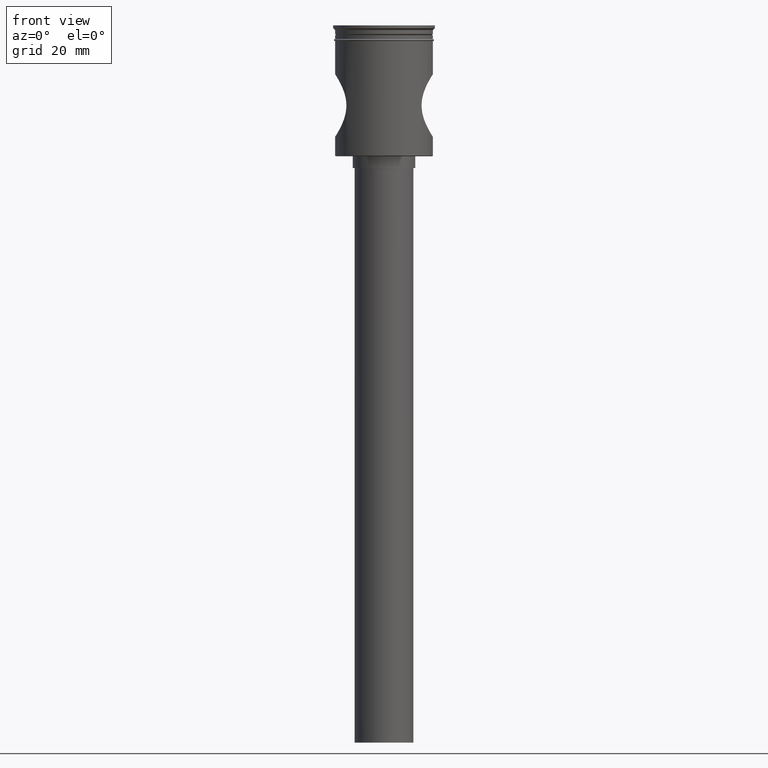
[diagram: clean part render]
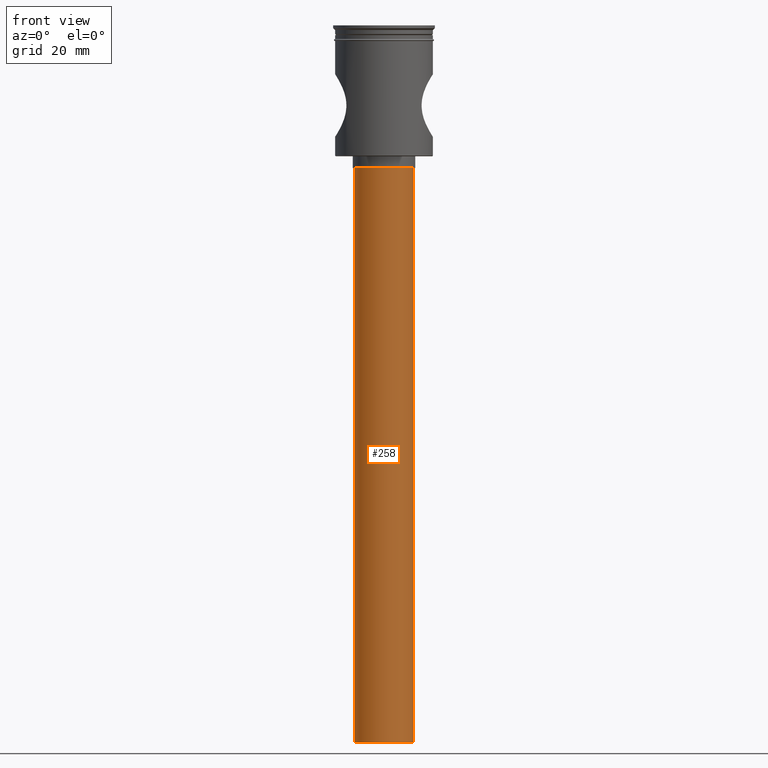
[diagram: same view with one face highlighted and labeled with its STEP entity id]
A machine part, front view. The second image highlights one B-rep face of the part: STEP entity #258.
In plain terms, the highlighted cylindrical surface (edge-blend (fillet) strip) has radius 7.5 mm, axis along (-0, -0, 1).
Its self-contained STEP definition (entity closure, byte-faithful):
#22 = EDGE_CURVE ( 'NONE', #1249, #1052, #922, .T. ) ;
#103 = DIRECTION ( 'NONE',  ( -1.000000000000000000, 0.000000000000000000, 0.000000000000000000 ) ) ;
#122 = EDGE_LOOP ( 'NONE', ( #563, #1190, #560, #268 ) ) ;
#154 = CIRCLE ( 'NONE', #1053, 7.500000000000000000 ) ;
#194 = DIRECTION ( 'NONE',  ( -0.000000000000000000, -0.000000000000000000, 1.000000000000000000 ) ) ;
#236 = CARTESIAN_POINT ( 'NONE',  ( -7.500000000000000000, 9.184850993605147944E-16, -183.5000000000000000 ) ) ;
#258 = ADVANCED_FACE ( 'NONE', ( #1256 ), #677, .T. ) ;
#268 = ORIENTED_EDGE ( 'NONE', *, *, #22, .T. ) ;
#392 = CARTESIAN_POINT ( 'NONE',  ( -7.500000000000000000, 9.184850993605147944E-16, -183.5000000000000000 ) ) ;
#448 = VERTEX_POINT ( 'NONE', #1354 ) ;
#466 = DIRECTION ( 'NONE',  ( 0.000000000000000000, 0.000000000000000000, -1.000000000000000000 ) ) ;
#475 = CARTESIAN_POINT ( 'NONE',  ( 0.000000000000000000, 0.000000000000000000, -36.50000000000000711 ) ) ;
#492 = CARTESIAN_POINT ( 'NONE',  ( 0.000000000000000000, 0.000000000000000000, -183.5000000000000000 ) ) ;
#510 = VERTEX_POINT ( 'NONE', #236 ) ;
#511 = CARTESIAN_POINT ( 'NONE',  ( 7.500000000000000000, 0.000000000000000000, -36.50000000000000711 ) ) ;
#539 = EDGE_CURVE ( 'NONE', #448, #1249, #811, .T. ) ;
#560 = ORIENTED_EDGE ( 'NONE', *, *, #539, .T. ) ;
#563 = ORIENTED_EDGE ( 'NONE', *, *, #965, .F. ) ;
#663 = DIRECTION ( 'NONE',  ( 1.000000000000000000, 0.000000000000000000, 0.000000000000000000 ) ) ;
#670 = DIRECTION ( 'NONE',  ( -0.000000000000000000, -0.000000000000000000, 1.000000000000000000 ) ) ;
#677 = CYLINDRICAL_SURFACE ( 'NONE', #1318, 7.500000000000000000 ) ;
#710 = CARTESIAN_POINT ( 'NONE',  ( -7.500000000000000000, 9.184850993605147944E-16, -36.50000000000000711 ) ) ;
#738 = EDGE_CURVE ( 'NONE', #448, #510, #154, .T. ) ;
#811 = LINE ( 'NONE', #916, #972 ) ;
#916 = CARTESIAN_POINT ( 'NONE',  ( 7.500000000000000000, 0.000000000000000000, -183.5000000000000000 ) ) ;
#922 = CIRCLE ( 'NONE', #1293, 7.500000000000000000 ) ;
#965 = EDGE_CURVE ( 'NONE', #510, #1052, #986, .T. ) ;
#971 = DIRECTION ( 'NONE',  ( 0.000000000000000000, 0.000000000000000000, -1.000000000000000000 ) ) ;
#972 = VECTOR ( 'NONE', #1277, 1000.000000000000000 ) ;
#986 = LINE ( 'NONE', #392, #1321 ) ;
#1052 = VERTEX_POINT ( 'NONE', #710 ) ;
#1053 = AXIS2_PLACEMENT_3D ( 'NONE', #492, #971, #1450 ) ;
#1145 = CARTESIAN_POINT ( 'NONE',  ( 0.000000000000000000, 0.000000000000000000, -183.5000000000000000 ) ) ;
#1190 = ORIENTED_EDGE ( 'NONE', *, *, #738, .F. ) ;
#1249 = VERTEX_POINT ( 'NONE', #511 ) ;
#1256 = FACE_OUTER_BOUND ( 'NONE', #122, .T. ) ;
#1277 = DIRECTION ( 'NONE',  ( -0.000000000000000000, -0.000000000000000000, 1.000000000000000000 ) ) ;
#1293 = AXIS2_PLACEMENT_3D ( 'NONE', #475, #466, #103 ) ;
#1318 = AXIS2_PLACEMENT_3D ( 'NONE', #1145, #670, #663 ) ;
#1321 = VECTOR ( 'NONE', #194, 1000.000000000000000 ) ;
#1354 = CARTESIAN_POINT ( 'NONE',  ( 7.500000000000000000, 0.000000000000000000, -183.5000000000000000 ) ) ;
#1450 = DIRECTION ( 'NONE',  ( -1.000000000000000000, 0.000000000000000000, 0.000000000000000000 ) ) ;